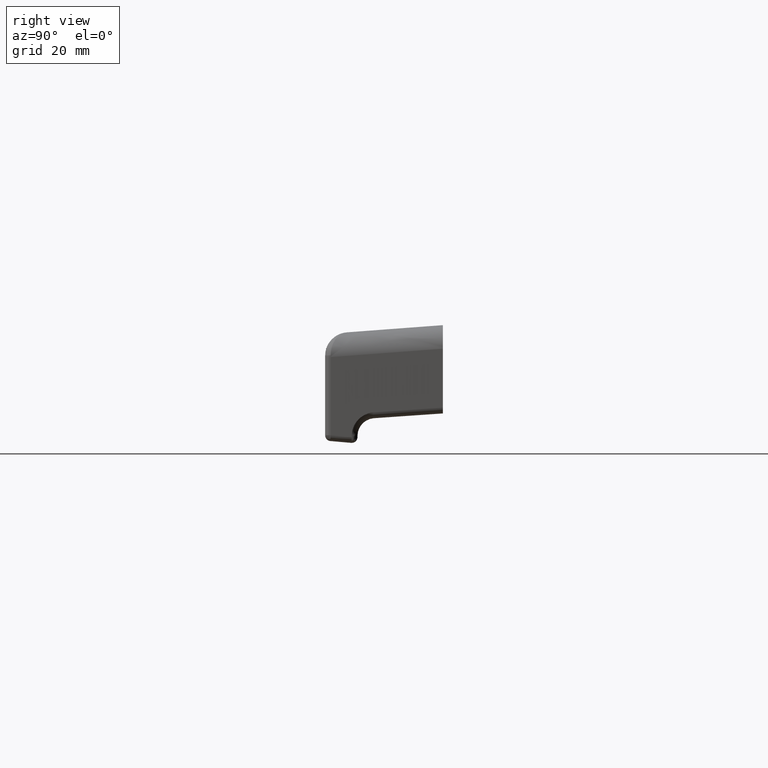
[diagram: clean part render]
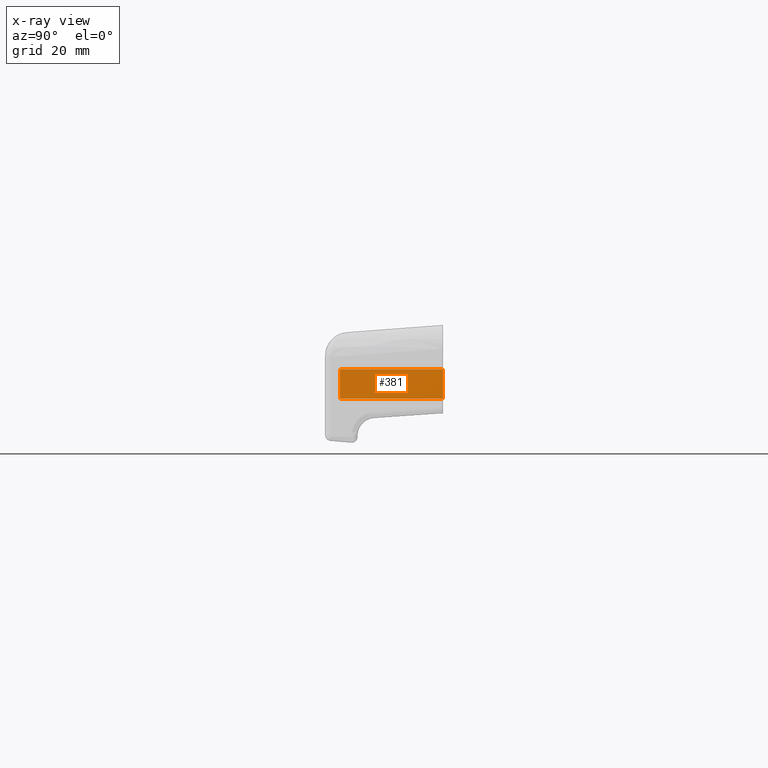
[diagram: x-ray — body ghosted, one internal face saturated and labeled with its STEP entity id]
A machine part, right view, then the same camera in x-ray: the body is ghosted and one INTERNAL B-rep face — a face not visible from any outside direction — is saturated and labeled: STEP entity #381.
In plain terms, the highlighted face is a freeform B-spline surface patch.
Its self-contained STEP definition (entity closure, byte-faithful):
#266=CARTESIAN_POINT('',(5.773503000000120,-17.500000000000000,0.0));
#267=VERTEX_POINT('',#266);
#273=CARTESIAN_POINT('',(2.886751000000120,-17.500000000000000,5.0));
#274=VERTEX_POINT('',#273);
#275=CARTESIAN_POINT('',(2.886751000000120,-17.500000000000000,5.0));
#276=CARTESIAN_POINT('',(5.773503000000120,-17.500000000000000,0.0));
#277=QUASI_UNIFORM_CURVE('',1,(#275,#276),.UNSPECIFIED.,.F.,.U.);
#278=EDGE_CURVE('',#274,#267,#277,.T.);
#343=CARTESIAN_POINT('',(5.773503000000120,0.0,0.0));
#344=VERTEX_POINT('',#343);
#350=CARTESIAN_POINT('',(5.773503000000120,-17.500000000000000,0.0));
#351=CARTESIAN_POINT('',(5.773503000000120,0.0,0.0));
#352=QUASI_UNIFORM_CURVE('',1,(#350,#351),.UNSPECIFIED.,.F.,.U.);
#353=EDGE_CURVE('',#267,#344,#352,.T.);
#360=CARTESIAN_POINT('',(2.742557726409949,-18.374124966081599,5.249750019381940));
#361=CARTESIAN_POINT('',(5.917696118732845,-18.374124966081599,-0.249749751161040));
#362=CARTESIAN_POINT('',(2.742557726409949,0.874125435468180,5.249750019381940));
#363=CARTESIAN_POINT('',(5.917696118732845,0.874125435468180,-0.249749751161040));
#364=B_SPLINE_SURFACE_WITH_KNOTS('',1,1,((#360,#362),(#361,#363)),.UNSPECIFIED.,.F.,.F.,.U.,(2,2),(2,2),(0.0,6.350275705558390),(0.0,19.248250401549779),.UNSPECIFIED.);
#365=CARTESIAN_POINT('',(2.886751000000120,0.0,5.0));
#366=VERTEX_POINT('',#365);
#367=CARTESIAN_POINT('',(2.886751000000120,0.0,5.0));
#368=CARTESIAN_POINT('',(5.773503000000120,0.0,0.0));
#369=QUASI_UNIFORM_CURVE('',1,(#367,#368),.UNSPECIFIED.,.F.,.U.);
#370=EDGE_CURVE('',#366,#344,#369,.T.);
#371=ORIENTED_EDGE('',*,*,#370,.F.);
#372=CARTESIAN_POINT('',(2.886751000000120,-17.500000000000000,5.0));
#373=CARTESIAN_POINT('',(2.886751000000120,0.0,5.0));
#374=QUASI_UNIFORM_CURVE('',1,(#372,#373),.UNSPECIFIED.,.F.,.U.);
#375=EDGE_CURVE('',#274,#366,#374,.T.);
#376=ORIENTED_EDGE('',*,*,#375,.F.);
#377=ORIENTED_EDGE('',*,*,#278,.T.);
#378=ORIENTED_EDGE('',*,*,#353,.T.);
#379=EDGE_LOOP('',(#371,#376,#377,#378));
#380=FACE_OUTER_BOUND('',#379,.T.);
#381=ADVANCED_FACE('',(#380),#364,.T.);